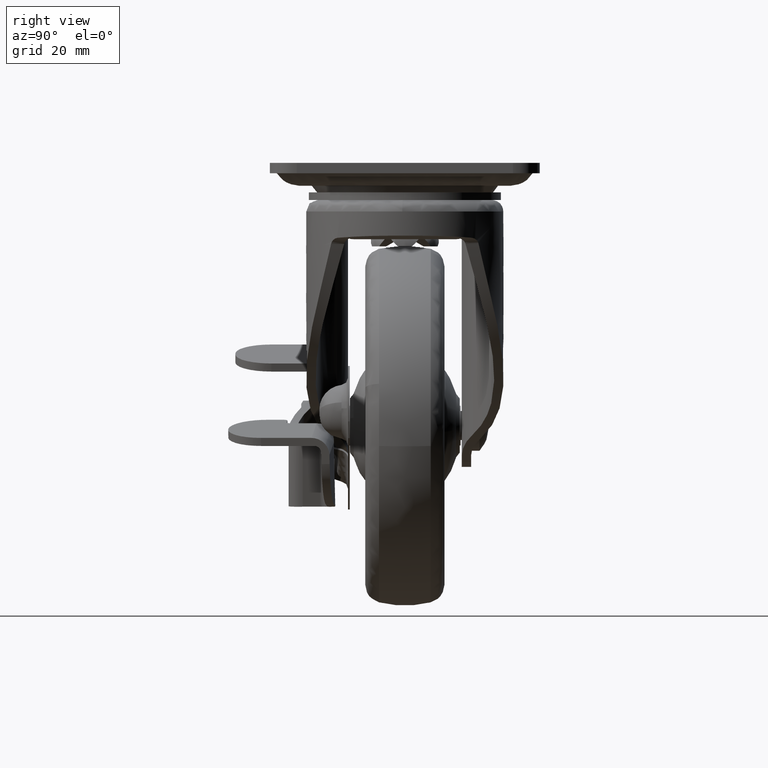
[diagram: clean part render]
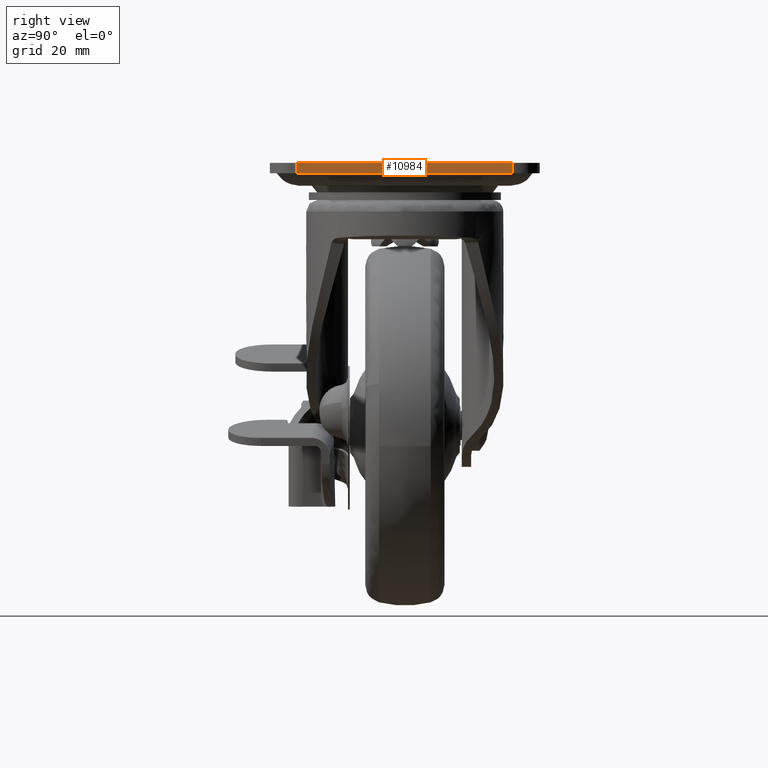
[diagram: same view with one face highlighted and labeled with its STEP entity id]
A machine part, right view. The second image highlights one B-rep face of the part: STEP entity #10984.
In plain terms, the highlighted face is a freeform B-spline surface patch.
Its self-contained STEP definition (entity closure, byte-faithful):
#10730=CARTESIAN_POINT('',(49.500000000000000,-30.0,0.0));
#10731=VERTEX_POINT('',#10730);
#10745=CARTESIAN_POINT('',(49.500000000000000,30.0,0.0));
#10746=VERTEX_POINT('',#10745);
#10747=CARTESIAN_POINT('',(49.500000000000000,-30.0,0.0));
#10748=CARTESIAN_POINT('',(49.500000000000000,30.0,0.0));
#10749=QUASI_UNIFORM_CURVE('',1,(#10747,#10748),.UNSPECIFIED.,.F.,.U.);
#10750=EDGE_CURVE('',#10731,#10746,#10749,.T.);
#10821=CARTESIAN_POINT('',(49.500000000000000,30.0,-2.899615000000000));
#10822=VERTEX_POINT('',#10821);
#10835=CARTESIAN_POINT('',(49.500000000000000,-30.0,-2.899615000000000));
#10836=VERTEX_POINT('',#10835);
#10837=CARTESIAN_POINT('',(49.500000000000000,-30.0,-2.899615000000000));
#10838=CARTESIAN_POINT('',(49.500000000000000,30.0,-2.899615000000000));
#10839=QUASI_UNIFORM_CURVE('',1,(#10837,#10838),.UNSPECIFIED.,.F.,.U.);
#10840=EDGE_CURVE('',#10836,#10822,#10839,.T.);
#10955=CARTESIAN_POINT('',(49.500000000000000,30.0,-2.899615000000000));
#10956=CARTESIAN_POINT('',(49.500000000000000,30.0,0.0));
#10957=QUASI_UNIFORM_CURVE('',1,(#10955,#10956),.UNSPECIFIED.,.F.,.U.);
#10958=EDGE_CURVE('',#10822,#10746,#10957,.T.);
#10969=CARTESIAN_POINT('',(49.500000000000000,-32.996999883708362,-3.044450818069004));
#10970=CARTESIAN_POINT('',(49.500000000000000,32.997001493033771,-3.044450818069004));
#10971=CARTESIAN_POINT('',(49.500000000000000,-32.996999883708362,0.144835843993583));
#10972=CARTESIAN_POINT('',(49.500000000000000,32.997001493033771,0.144835843993583));
#10973=B_SPLINE_SURFACE_WITH_KNOTS('',1,1,((#10969,#10971),(#10970,#10972)),.UNSPECIFIED.,.F.,.F.,.U.,(2,2),(2,2),(0.0,65.994001376742119),(0.0,3.189286662062588),.UNSPECIFIED.);
#10974=ORIENTED_EDGE('',*,*,#10750,.F.);
#10975=CARTESIAN_POINT('',(49.500000000000000,-30.0,-2.899615000000000));
#10976=CARTESIAN_POINT('',(49.500000000000000,-30.0,0.0));
#10977=QUASI_UNIFORM_CURVE('',1,(#10975,#10976),.UNSPECIFIED.,.F.,.U.);
#10978=EDGE_CURVE('',#10836,#10731,#10977,.T.);
#10979=ORIENTED_EDGE('',*,*,#10978,.F.);
#10980=ORIENTED_EDGE('',*,*,#10840,.T.);
#10981=ORIENTED_EDGE('',*,*,#10958,.T.);
#10982=EDGE_LOOP('',(#10974,#10979,#10980,#10981));
#10983=FACE_OUTER_BOUND('',#10982,.T.);
#10984=ADVANCED_FACE('',(#10983),#10973,.T.);